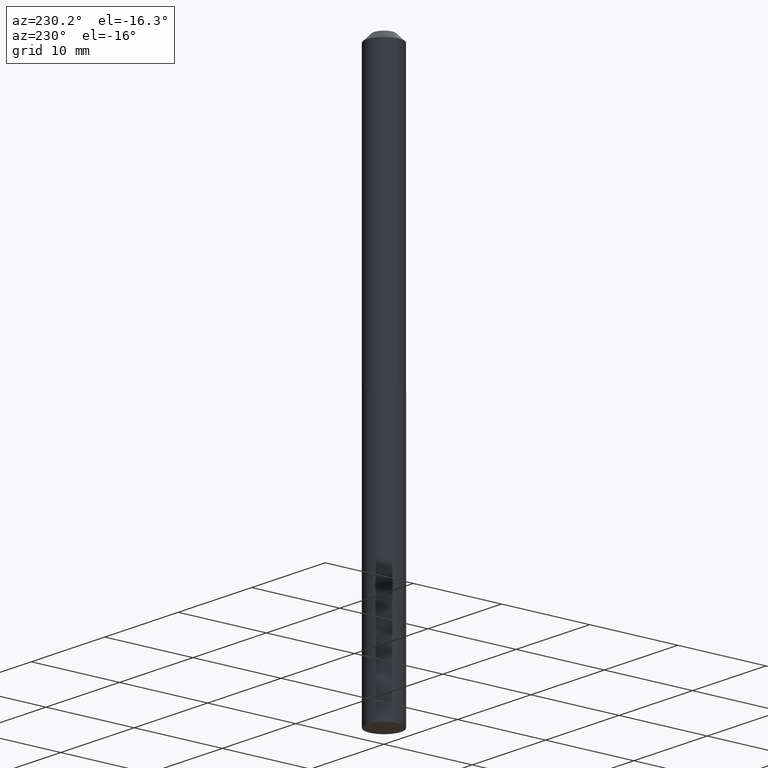
[diagram: clean part render]
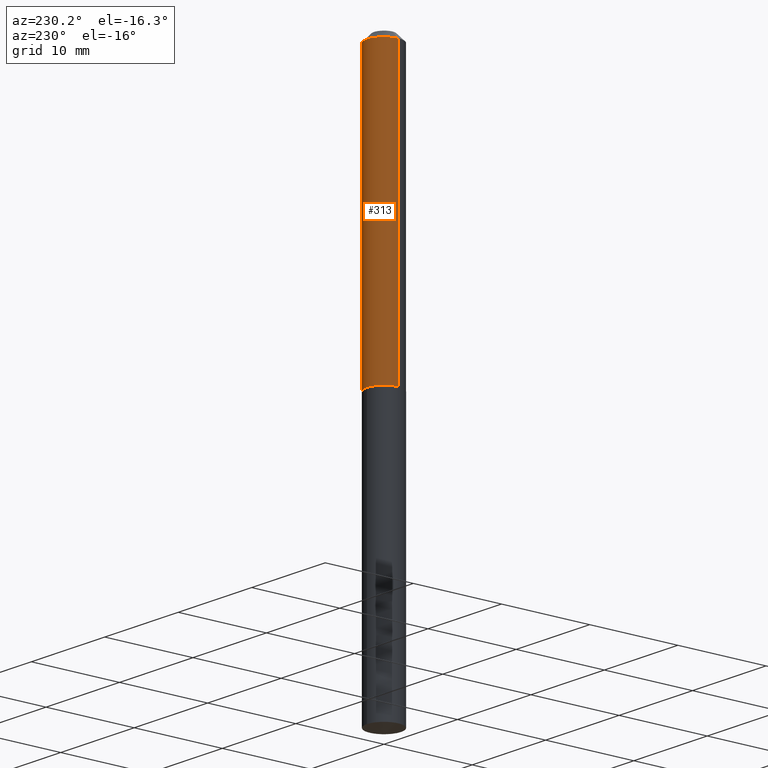
[diagram: same view with one face highlighted and labeled with its STEP entity id]
A machine part, auxiliary view. The second image highlights one B-rep face of the part: STEP entity #313.
In plain terms, the highlighted cylindrical surface (edge-blend (fillet) strip) has radius 1.9304 mm, axis along (-0, 0, 1).
Its self-contained STEP definition (entity closure, byte-faithful):
#25 = EDGE_LOOP ( 'NONE', ( #233, #239, #304, #59 ) ) ;
#45 = AXIS2_PLACEMENT_3D ( 'NONE', #68, #132, #269 ) ;
#46 = CARTESIAN_POINT ( 'NONE',  ( 0.000000000000000000, 0.000000000000000000, 0.000000000000000000 ) ) ;
#57 = VERTEX_POINT ( 'NONE', #362 ) ;
#59 = ORIENTED_EDGE ( 'NONE', *, *, #144, .F. ) ;
#60 = EDGE_CURVE ( 'NONE', #57, #257, #182, .T. ) ;
#61 = DIRECTION ( 'NONE',  ( -2.445468806185136877E-29, 3.491481338843145188E-15, 1.000000000000000000 ) ) ;
#68 = CARTESIAN_POINT ( 'NONE',  ( 3.121640931095327453E-29, -4.456875929033275316E-15, -1.276500000000000190 ) ) ;
#126 = VECTOR ( 'NONE', #344, 39.37007874015748143 ) ;
#132 = DIRECTION ( 'NONE',  ( -2.445468806185136597E-29, 3.491481338843145583E-15, 1.000000000000000000 ) ) ;
#144 = EDGE_CURVE ( 'NONE', #155, #147, #272, .T. ) ;
#147 = VERTEX_POINT ( 'NONE', #372 ) ;
#152 = EDGE_CURVE ( 'NONE', #155, #57, #329, .T. ) ;
#155 = VERTEX_POINT ( 'NONE', #196 ) ;
#159 = CARTESIAN_POINT ( 'NONE',  ( -0.07600000000000006750, 5.400124791776766209E-16, -3.738390668593732200E-30 ) ) ;
#182 = LINE ( 'NONE', #159, #198 ) ;
#194 = DIRECTION ( 'NONE',  ( -2.445468806185136597E-29, 3.491481338843145583E-15, 1.000000000000000000 ) ) ;
#196 = CARTESIAN_POINT ( 'NONE',  ( 0.07600000000000015077, -4.987581092537432911E-15, -1.276500000000000190 ) ) ;
#198 = VECTOR ( 'NONE', #61, 39.37007874015748143 ) ;
#202 = FACE_OUTER_BOUND ( 'NONE', #25, .T. ) ;
#203 = DIRECTION ( 'NONE',  ( 1.000000000000000000, -6.982962677686267499E-15, 0.000000000000000000 ) ) ;
#228 = DIRECTION ( 'NONE',  ( 1.000000000000000000, -6.982962677686267499E-15, 4.876176775795935793E-29 ) ) ;
#230 = DIRECTION ( 'NONE',  ( -2.445468806185136597E-29, 3.491481338843145583E-15, 1.000000000000000000 ) ) ;
#233 = ORIENTED_EDGE ( 'NONE', *, *, #152, .T. ) ;
#239 = ORIENTED_EDGE ( 'NONE', *, *, #60, .T. ) ;
#257 = VERTEX_POINT ( 'NONE', #277 ) ;
#265 = CARTESIAN_POINT ( 'NONE',  ( 0.07600000000000006750, -5.307051635041568064E-16, 3.705894349604914454E-30 ) ) ;
#269 = DIRECTION ( 'NONE',  ( 1.000000000000000000, -6.982962677686267499E-15, 0.000000000000000000 ) ) ;
#272 = LINE ( 'NONE', #265, #126 ) ;
#277 = CARTESIAN_POINT ( 'NONE',  ( -0.07599999999999999811, -1.742979881258384404E-15, -0.03125000000000019429 ) ) ;
#287 = EDGE_CURVE ( 'NONE', #147, #257, #376, .T. ) ;
#304 = ORIENTED_EDGE ( 'NONE', *, *, #287, .F. ) ;
#313 = ADVANCED_FACE ( 'NONE', ( #202 ), #374, .T. ) ;
#315 = CARTESIAN_POINT ( 'NONE',  ( 7.642090019328599159E-31, -1.091087918388489774E-16, -0.03125000000000019429 ) ) ;
#329 = CIRCLE ( 'NONE', #45, 0.07600000000000015077 ) ;
#335 = AXIS2_PLACEMENT_3D ( 'NONE', #46, #230, #228 ) ;
#344 = DIRECTION ( 'NONE',  ( -2.445468806185136877E-29, 3.491481338843145188E-15, 1.000000000000000000 ) ) ;
#362 = CARTESIAN_POINT ( 'NONE',  ( -0.07600000000000015077, -3.916863449855597906E-15, -1.276500000000000190 ) ) ;
#370 = AXIS2_PLACEMENT_3D ( 'NONE', #315, #194, #203 ) ;
#372 = CARTESIAN_POINT ( 'NONE',  ( 0.07599999999999999811, -6.398139553430053154E-16, -0.03125000000000019429 ) ) ;
#374 = CYLINDRICAL_SURFACE ( 'NONE', #335, 0.07600000000000006750 ) ;
#376 = CIRCLE ( 'NONE', #370, 0.07599999999999999811 ) ;